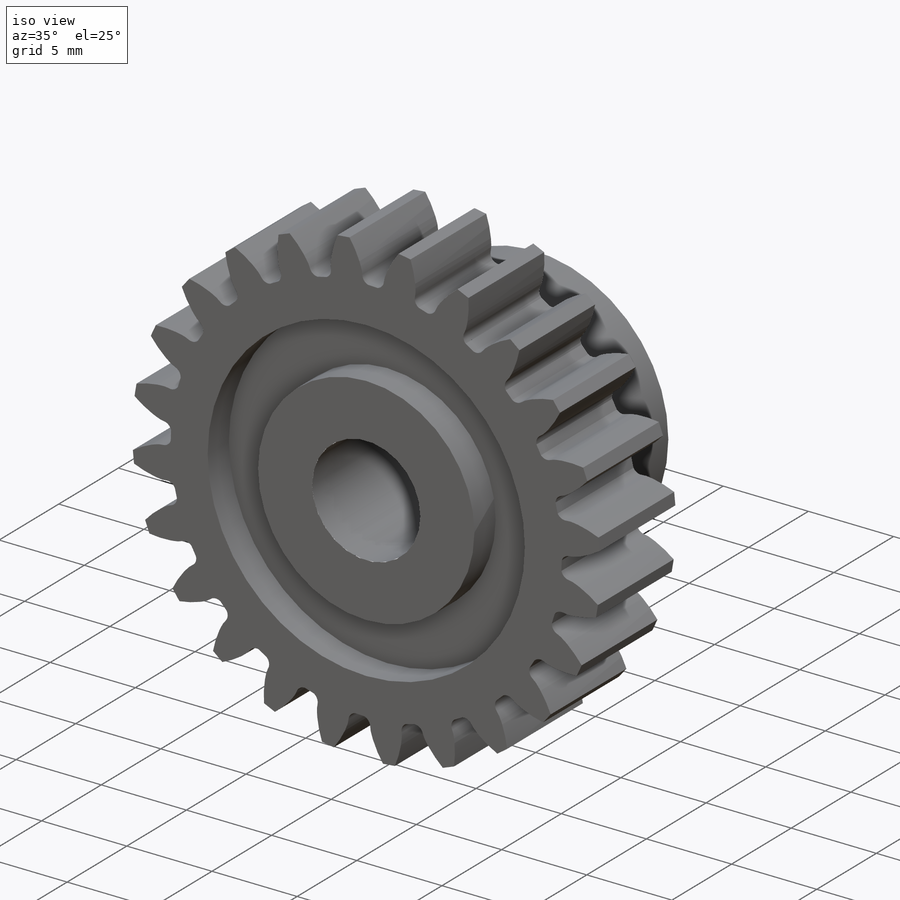
[diagram: iso view]
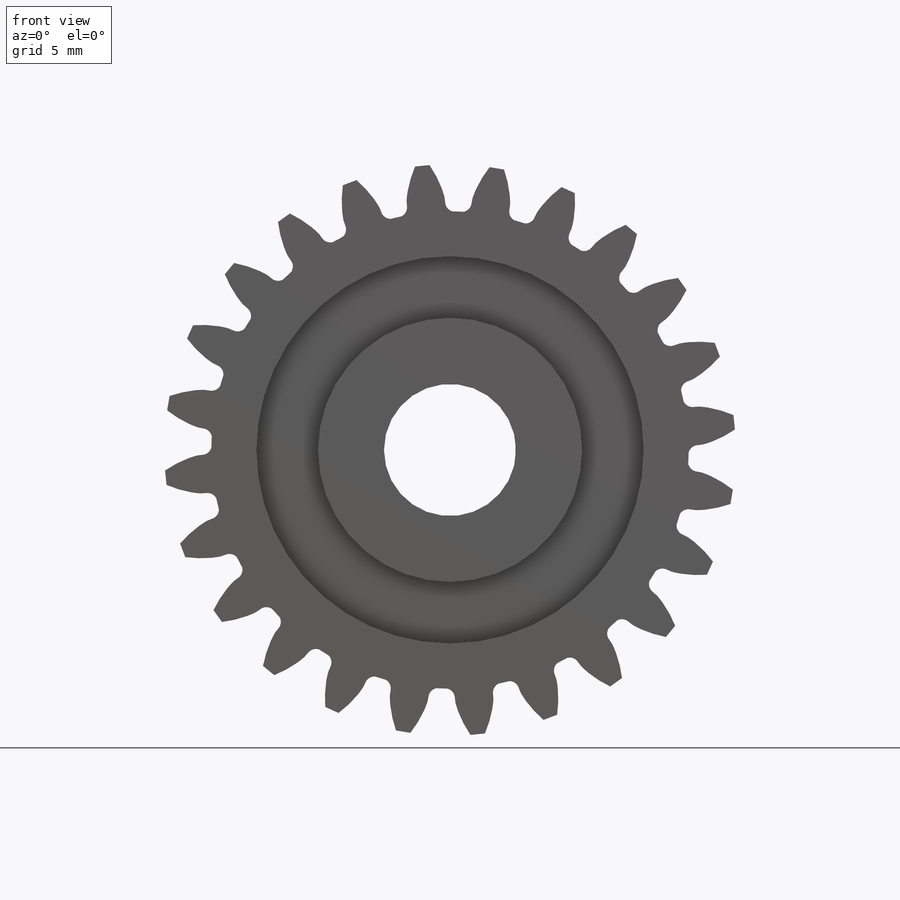
[diagram: front view]
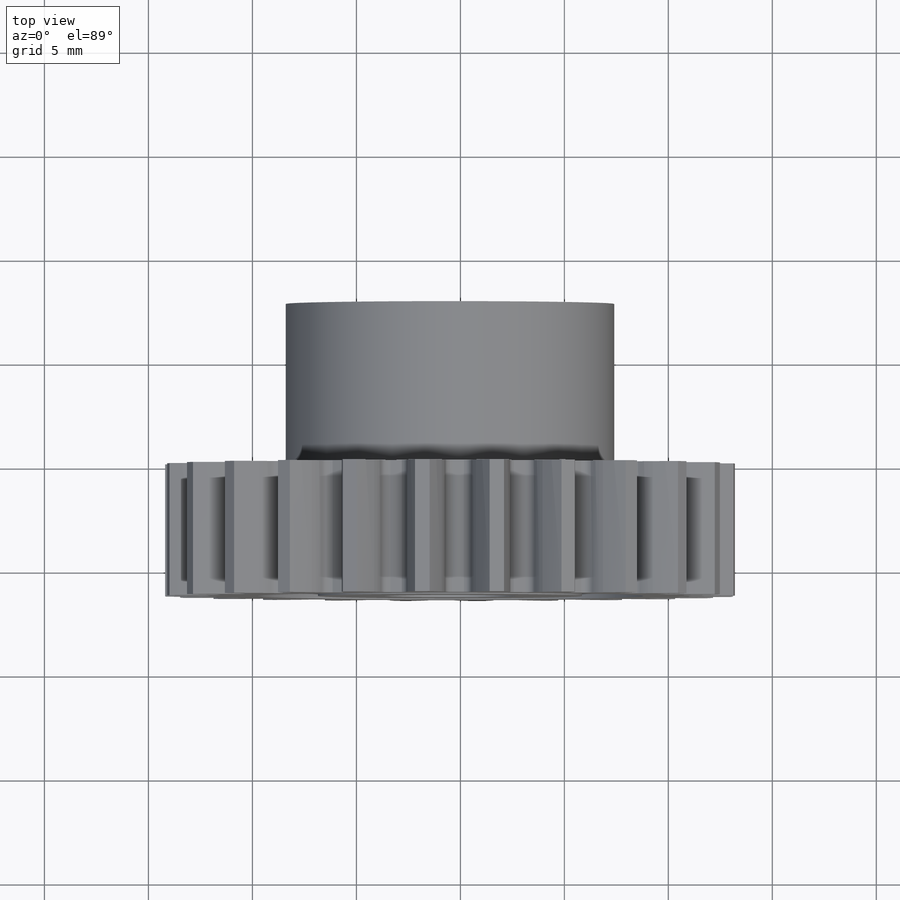
[diagram: top view]
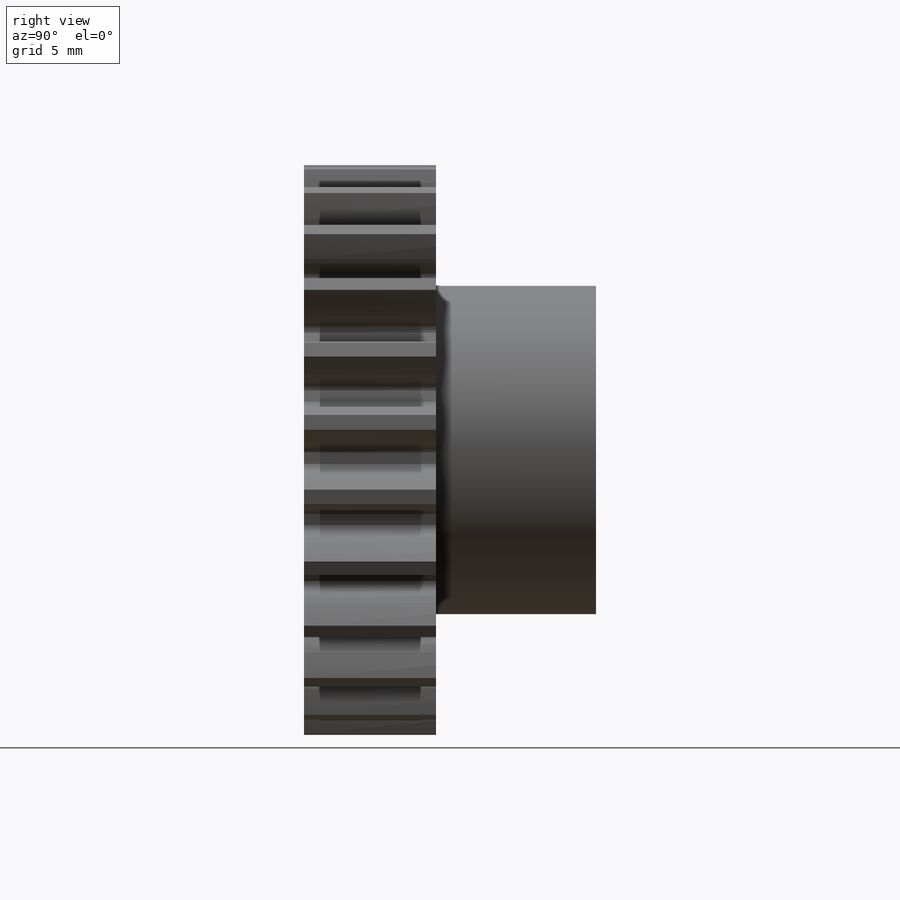
[diagram: right view]
SOLIDWORKS PART (.sldprt)
format: sldprt  version: not decoded by parser v0  size: 454,656 bytes
history: native  units: mm
features: sketch x4, extrude x2, cut_extrude x2, material x1 (+11 scaffold rows collapsed)
feature tree (20):
  scaffold x11  (default folders/planes/origin — collapsed)
  material  "Material <not specified>"
  sketch  "Model"
  extrude  "Boss-Extrude1"  Depth=6.35mm
  sketch  "Sketch2"  dims[D1=18.6182mm D2=12.7mm]
  cut_extrude  "Cut-Extrude1"  Depth=1.778mm
  sketch  "Sketch3"
  cut_extrude  "Cut-Extrude2"  Depth=1.778mm
  sketch  "Sketch4"  dims[D1=15.7988mm]
  extrude  "Boss-Extrude2"  Depth=9.4742mm
decode coverage: 6 of 8 modeling features carry decoded parameters
note: suppression state not decoded; provenance and decode notes live in map.json
